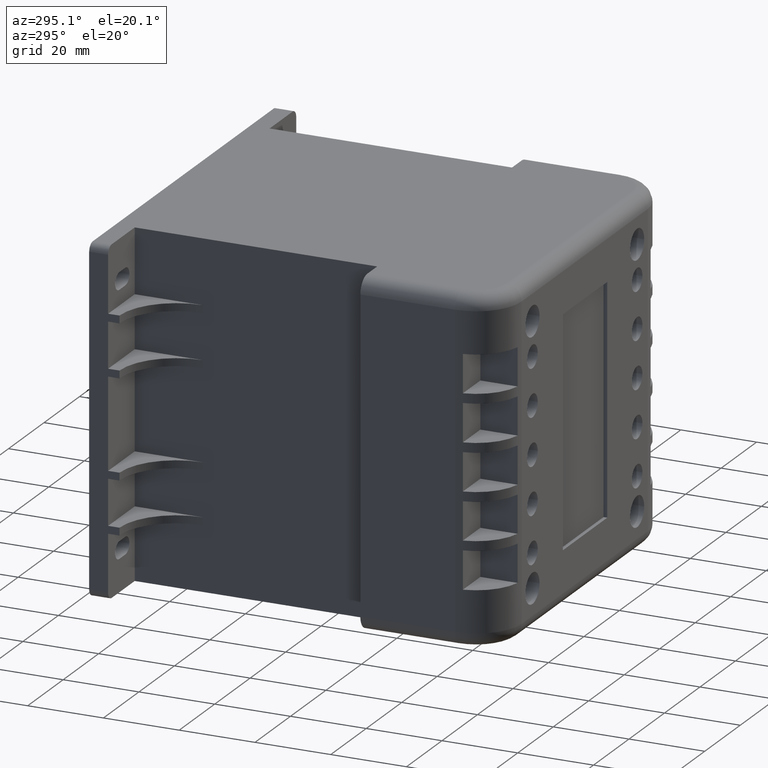
[diagram: clean part render]
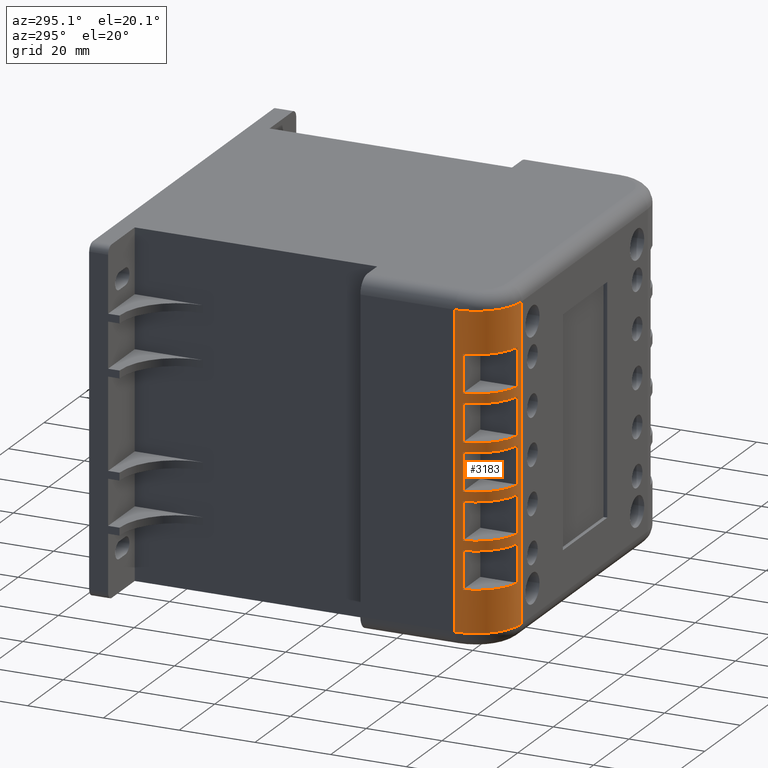
[diagram: same view with one face highlighted and labeled with its STEP entity id]
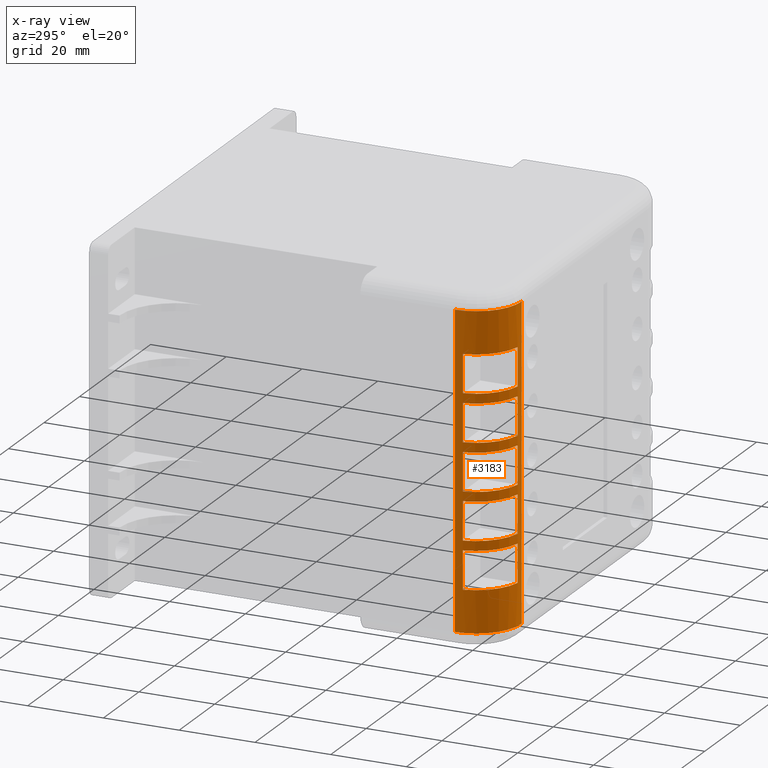
[diagram: x-ray of the same camera — body ghosted, the highlighted face saturated]
A machine part, auxiliary view. The second image highlights one B-rep face of the part: STEP entity #3183.
The next image is the same camera in x-ray: the body ghosted, the highlighted face saturated — about 0% of this face is hidden behind the body in this view.
In plain terms, the highlighted cylindrical surface (partial cylindrical patch) has radius 12 mm, axis along (0, 0, -1).
Its self-contained STEP definition (entity closure, byte-faithful):
#48=CYLINDRICAL_SURFACE('',#3540,12.);
#105=CIRCLE('',#3485,12.);
#115=CIRCLE('',#3503,12.);
#127=CIRCLE('',#3541,12.);
#128=CIRCLE('',#3542,12.);
#129=CIRCLE('',#3543,12.);
#130=CIRCLE('',#3544,12.);
#131=CIRCLE('',#3545,12.);
#132=CIRCLE('',#3546,12.);
#133=CIRCLE('',#3547,12.);
#134=CIRCLE('',#3548,12.);
#135=CIRCLE('',#3549,12.);
#136=CIRCLE('',#3550,12.);
#216=FACE_BOUND('',#525,.T.);
#217=FACE_BOUND('',#526,.T.);
#218=FACE_BOUND('',#527,.T.);
#219=FACE_BOUND('',#528,.T.);
#220=FACE_BOUND('',#529,.T.);
#314=FACE_OUTER_BOUND('',#524,.T.);
#524=EDGE_LOOP('',(#2280,#2281,#2282,#2283));
#525=EDGE_LOOP('',(#2284,#2285,#2286,#2287));
#526=EDGE_LOOP('',(#2288,#2289,#2290,#2291));
#527=EDGE_LOOP('',(#2292,#2293,#2294,#2295));
#528=EDGE_LOOP('',(#2296,#2297,#2298,#2299));
#529=EDGE_LOOP('',(#2300,#2301,#2302,#2303));
#714=LINE('',#4855,#1018);
#753=LINE('',#4968,#1057);
#759=LINE('',#4989,#1063);
#760=LINE('',#4992,#1064);
#761=LINE('',#4997,#1065);
#762=LINE('',#5000,#1066);
#763=LINE('',#5005,#1067);
#764=LINE('',#5008,#1068);
#765=LINE('',#5013,#1069);
#766=LINE('',#5016,#1070);
#767=LINE('',#5021,#1071);
#768=LINE('',#5024,#1072);
#1018=VECTOR('',#3966,10.);
#1057=VECTOR('',#4079,10.);
#1063=VECTOR('',#4109,10.);
#1064=VECTOR('',#4112,10.);
#1065=VECTOR('',#4115,10.);
#1066=VECTOR('',#4118,10.);
#1067=VECTOR('',#4121,10.);
#1068=VECTOR('',#4124,10.);
#1069=VECTOR('',#4127,10.);
#1070=VECTOR('',#4130,10.);
#1071=VECTOR('',#4133,10.);
#1072=VECTOR('',#4136,10.);
#1322=VERTEX_POINT('',#4836);
#1323=VERTEX_POINT('',#4840);
#1326=VERTEX_POINT('',#4854);
#1332=VERTEX_POINT('',#4871);
#1364=VERTEX_POINT('',#4985);
#1365=VERTEX_POINT('',#4986);
#1366=VERTEX_POINT('',#4988);
#1367=VERTEX_POINT('',#4990);
#1368=VERTEX_POINT('',#4993);
#1369=VERTEX_POINT('',#4994);
#1370=VERTEX_POINT('',#4996);
#1371=VERTEX_POINT('',#4998);
#1372=VERTEX_POINT('',#5001);
#1373=VERTEX_POINT('',#5002);
#1374=VERTEX_POINT('',#5004);
#1375=VERTEX_POINT('',#5006);
#1376=VERTEX_POINT('',#5009);
#1377=VERTEX_POINT('',#5010);
#1378=VERTEX_POINT('',#5012);
#1379=VERTEX_POINT('',#5014);
#1380=VERTEX_POINT('',#5017);
#1381=VERTEX_POINT('',#5018);
#1382=VERTEX_POINT('',#5020);
#1383=VERTEX_POINT('',#5022);
#1628=EDGE_CURVE('',#1323,#1322,#105,.T.);
#1634=EDGE_CURVE('',#1326,#1322,#714,.T.);
#1646=EDGE_CURVE('',#1326,#1332,#115,.T.);
#1691=EDGE_CURVE('',#1323,#1332,#753,.T.);
#1697=EDGE_CURVE('',#1364,#1365,#127,.T.);
#1698=EDGE_CURVE('',#1365,#1366,#759,.T.);
#1699=EDGE_CURVE('',#1366,#1367,#128,.T.);
#1700=EDGE_CURVE('',#1367,#1364,#760,.T.);
#1701=EDGE_CURVE('',#1368,#1369,#129,.T.);
#1702=EDGE_CURVE('',#1369,#1370,#761,.T.);
#1703=EDGE_CURVE('',#1370,#1371,#130,.T.);
#1704=EDGE_CURVE('',#1371,#1368,#762,.T.);
#1705=EDGE_CURVE('',#1372,#1373,#131,.T.);
#1706=EDGE_CURVE('',#1373,#1374,#763,.T.);
#1707=EDGE_CURVE('',#1374,#1375,#132,.T.);
#1708=EDGE_CURVE('',#1375,#1372,#764,.T.);
#1709=EDGE_CURVE('',#1376,#1377,#133,.T.);
#1710=EDGE_CURVE('',#1377,#1378,#765,.T.);
#1711=EDGE_CURVE('',#1378,#1379,#134,.T.);
#1712=EDGE_CURVE('',#1379,#1376,#766,.T.);
#1713=EDGE_CURVE('',#1380,#1381,#135,.T.);
#1714=EDGE_CURVE('',#1381,#1382,#767,.T.);
#1715=EDGE_CURVE('',#1382,#1383,#136,.T.);
#1716=EDGE_CURVE('',#1383,#1380,#768,.T.);
#2280=ORIENTED_EDGE('',*,*,#1628,.F.);
#2281=ORIENTED_EDGE('',*,*,#1691,.T.);
#2282=ORIENTED_EDGE('',*,*,#1646,.F.);
#2283=ORIENTED_EDGE('',*,*,#1634,.T.);
#2284=ORIENTED_EDGE('',*,*,#1697,.T.);
#2285=ORIENTED_EDGE('',*,*,#1698,.T.);
#2286=ORIENTED_EDGE('',*,*,#1699,.T.);
#2287=ORIENTED_EDGE('',*,*,#1700,.T.);
#2288=ORIENTED_EDGE('',*,*,#1701,.T.);
#2289=ORIENTED_EDGE('',*,*,#1702,.T.);
#2290=ORIENTED_EDGE('',*,*,#1703,.T.);
#2291=ORIENTED_EDGE('',*,*,#1704,.T.);
#2292=ORIENTED_EDGE('',*,*,#1705,.T.);
#2293=ORIENTED_EDGE('',*,*,#1706,.T.);
#2294=ORIENTED_EDGE('',*,*,#1707,.T.);
#2295=ORIENTED_EDGE('',*,*,#1708,.T.);
#2296=ORIENTED_EDGE('',*,*,#1709,.T.);
#2297=ORIENTED_EDGE('',*,*,#1710,.T.);
#2298=ORIENTED_EDGE('',*,*,#1711,.T.);
#2299=ORIENTED_EDGE('',*,*,#1712,.T.);
#2300=ORIENTED_EDGE('',*,*,#1713,.T.);
#2301=ORIENTED_EDGE('',*,*,#1714,.T.);
#2302=ORIENTED_EDGE('',*,*,#1715,.T.);
#2303=ORIENTED_EDGE('',*,*,#1716,.T.);
#3183=ADVANCED_FACE('',(#314,#216,#217,#218,#219,#220),#48,.T.);
#3485=AXIS2_PLACEMENT_3D('',#4842,#3948,#3949);
#3503=AXIS2_PLACEMENT_3D('',#4878,#3992,#3993);
#3540=AXIS2_PLACEMENT_3D('',#4984,#4105,#4106);
#3541=AXIS2_PLACEMENT_3D('',#4987,#4107,#4108);
#3542=AXIS2_PLACEMENT_3D('',#4991,#4110,#4111);
#3543=AXIS2_PLACEMENT_3D('',#4995,#4113,#4114);
#3544=AXIS2_PLACEMENT_3D('',#4999,#4116,#4117);
#3545=AXIS2_PLACEMENT_3D('',#5003,#4119,#4120);
#3546=AXIS2_PLACEMENT_3D('',#5007,#4122,#4123);
#3547=AXIS2_PLACEMENT_3D('',#5011,#4125,#4126);
#3548=AXIS2_PLACEMENT_3D('',#5015,#4128,#4129);
#3549=AXIS2_PLACEMENT_3D('',#5019,#4131,#4132);
#3550=AXIS2_PLACEMENT_3D('',#5023,#4134,#4135);
#3948=DIRECTION('center_axis',(0.,0.,-1.));
#3949=DIRECTION('ref_axis',(0.707106781186548,0.707106781186548,0.));
#3966=DIRECTION('',(-3.94745964311167E-16,0.,-1.));
#3992=DIRECTION('center_axis',(0.,0.,1.));
#3993=DIRECTION('ref_axis',(0.707106781186548,0.707106781186547,0.));
#4079=DIRECTION('',(3.94745964311167E-16,0.,1.));
#4105=DIRECTION('center_axis',(-3.94745964311167E-16,0.,-1.));
#4106=DIRECTION('ref_axis',(0.707106781186548,0.707106781186548,-1.04672830578918E-15));
#4107=DIRECTION('center_axis',(0.,0.,-1.));
#4108=DIRECTION('ref_axis',(0.707106781186548,0.707106781186548,-1.04672830578918E-15));
#4109=DIRECTION('',(3.94745964311167E-16,0.,1.));
#4110=DIRECTION('center_axis',(0.,0.,1.));
#4111=DIRECTION('ref_axis',(0.707106781186548,0.707106781186548,-1.04672830578918E-15));
#4112=DIRECTION('',(-3.94745964311167E-16,0.,-1.));
#4113=DIRECTION('center_axis',(0.,0.,-1.));
#4114=DIRECTION('ref_axis',(0.707106781186548,0.707106781186548,-1.04672830578918E-15));
#4115=DIRECTION('',(3.94745964311167E-16,0.,1.));
#4116=DIRECTION('center_axis',(0.,0.,1.));
#4117=DIRECTION('ref_axis',(0.707106781186548,0.707106781186548,-1.04672830578918E-15));
#4118=DIRECTION('',(-3.94745964311167E-16,0.,-1.));
#4119=DIRECTION('center_axis',(0.,0.,-1.));
#4120=DIRECTION('ref_axis',(0.707106781186548,0.707106781186548,-1.04672830578918E-15));
#4121=DIRECTION('',(3.94745964311167E-16,0.,1.));
#4122=DIRECTION('center_axis',(0.,0.,1.));
#4123=DIRECTION('ref_axis',(0.707106781186548,0.707106781186548,-1.04672830578918E-15));
#4124=DIRECTION('',(-3.94745964311167E-16,0.,-1.));
#4125=DIRECTION('center_axis',(0.,0.,-1.));
#4126=DIRECTION('ref_axis',(0.707106781186548,0.707106781186548,-1.04672830578918E-15));
#4127=DIRECTION('',(3.94745964311167E-16,0.,1.));
#4128=DIRECTION('center_axis',(0.,0.,1.));
#4129=DIRECTION('ref_axis',(0.707106781186548,0.707106781186548,-1.04672830578918E-15));
#4130=DIRECTION('',(-3.94745964311167E-16,0.,-1.));
#4131=DIRECTION('center_axis',(0.,0.,-1.));
#4132=DIRECTION('ref_axis',(0.707106781186548,0.707106781186548,-1.04672830578918E-15));
#4133=DIRECTION('',(3.94745964311167E-16,0.,1.));
#4134=DIRECTION('center_axis',(0.,0.,1.));
#4135=DIRECTION('ref_axis',(0.707106781186548,0.707106781186548,-1.04672830578918E-15));
#4136=DIRECTION('',(-3.94745964311167E-16,0.,-1.));
#4836=CARTESIAN_POINT('',(1.57898385724468E-15,25.,4.));
#4840=CARTESIAN_POINT('',(-12.,37.,4.00000000000001));
#4842=CARTESIAN_POINT('Origin',(-12.,25.,4.00000000000001));
#4854=CARTESIAN_POINT('',(3.39481529307603E-14,25.,86.));
#4855=CARTESIAN_POINT('',(2.66453525910038E-14,25.,67.5));
#4871=CARTESIAN_POINT('',(-12.,37.,86.));
#4878=CARTESIAN_POINT('Origin',(-12.,25.,86.));
#4968=CARTESIAN_POINT('',(-12.,37.,67.5));
#4984=CARTESIAN_POINT('Origin',(-12.,25.,67.5));
#4985=CARTESIAN_POINT('',(-10.,36.8321595661992,40.));
#4986=CARTESIAN_POINT('',(-0.16784043380075,27.,40.));
#4987=CARTESIAN_POINT('Origin',(-12.,25.,40.));
#4988=CARTESIAN_POINT('',(-0.167840433800746,27.,50.));
#4989=CARTESIAN_POINT('',(-0.167840433800739,27.,67.5));
#4990=CARTESIAN_POINT('',(-10.,36.8321595661992,50.));
#4991=CARTESIAN_POINT('Origin',(-12.,25.,50.));
#4992=CARTESIAN_POINT('',(-10.,36.8321595661992,67.5));
#4993=CARTESIAN_POINT('',(-10.,36.8321595661992,27.5));
#4994=CARTESIAN_POINT('',(-0.167840433800755,27.,27.5));
#4995=CARTESIAN_POINT('Origin',(-12.,25.,27.5));
#4996=CARTESIAN_POINT('',(-0.167840433800751,27.,37.5));
#4997=CARTESIAN_POINT('',(-0.167840433800739,27.,67.5));
#4998=CARTESIAN_POINT('',(-10.,36.8321595661992,37.5));
#4999=CARTESIAN_POINT('Origin',(-12.,25.,37.5));
#5000=CARTESIAN_POINT('',(-10.,36.8321595661992,67.5));
#5001=CARTESIAN_POINT('',(-10.,36.8321595661992,52.5));
#5002=CARTESIAN_POINT('',(-0.167840433800745,27.,52.5));
#5003=CARTESIAN_POINT('Origin',(-12.,25.,52.5));
#5004=CARTESIAN_POINT('',(-0.167840433800741,27.,62.5));
#5005=CARTESIAN_POINT('',(-0.167840433800739,27.,67.5));
#5006=CARTESIAN_POINT('',(-10.,36.8321595661992,62.5));
#5007=CARTESIAN_POINT('Origin',(-12.,25.,62.5));
#5008=CARTESIAN_POINT('',(-10.,36.8321595661992,67.5));
#5009=CARTESIAN_POINT('',(-10.,36.8321595661992,15.));
#5010=CARTESIAN_POINT('',(-0.16784043380076,27.,15.));
#5011=CARTESIAN_POINT('Origin',(-12.,25.,15.));
#5012=CARTESIAN_POINT('',(-0.167840433800756,27.,25.));
#5013=CARTESIAN_POINT('',(-0.167840433800739,27.,67.5));
#5014=CARTESIAN_POINT('',(-10.,36.8321595661992,25.));
#5015=CARTESIAN_POINT('Origin',(-12.,25.,25.));
#5016=CARTESIAN_POINT('',(-10.,36.8321595661992,67.5));
#5017=CARTESIAN_POINT('',(-10.,36.8321595661992,65.));
#5018=CARTESIAN_POINT('',(-0.16784043380074,27.,65.));
#5019=CARTESIAN_POINT('Origin',(-12.,25.,65.));
#5020=CARTESIAN_POINT('',(-0.167840433800736,27.,75.));
#5021=CARTESIAN_POINT('',(-0.167840433800739,27.,67.5));
#5022=CARTESIAN_POINT('',(-10.,36.8321595661992,75.));
#5023=CARTESIAN_POINT('Origin',(-12.,25.,75.));
#5024=CARTESIAN_POINT('',(-10.,36.8321595661992,67.5));